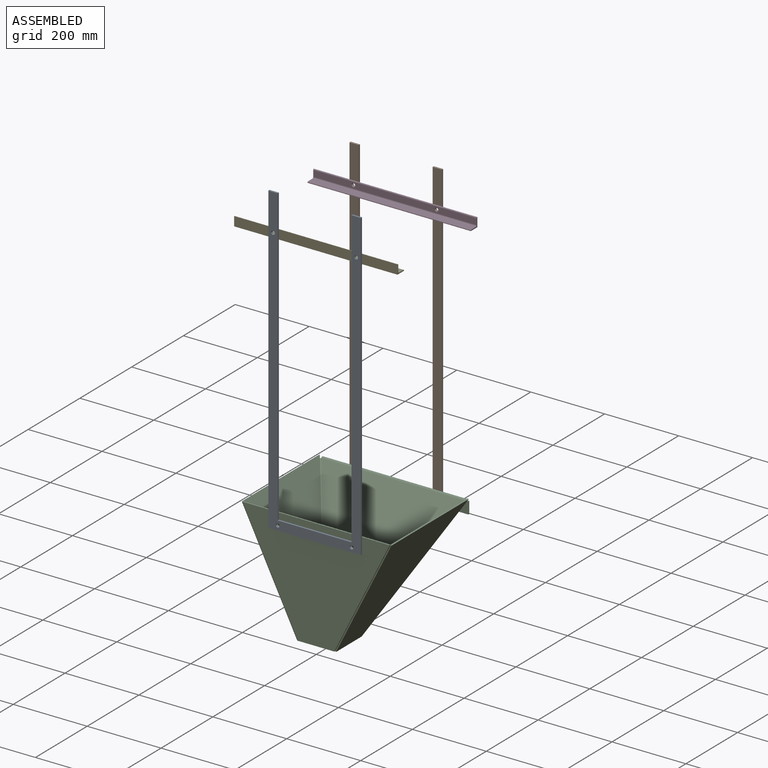
[diagram: assembled view]
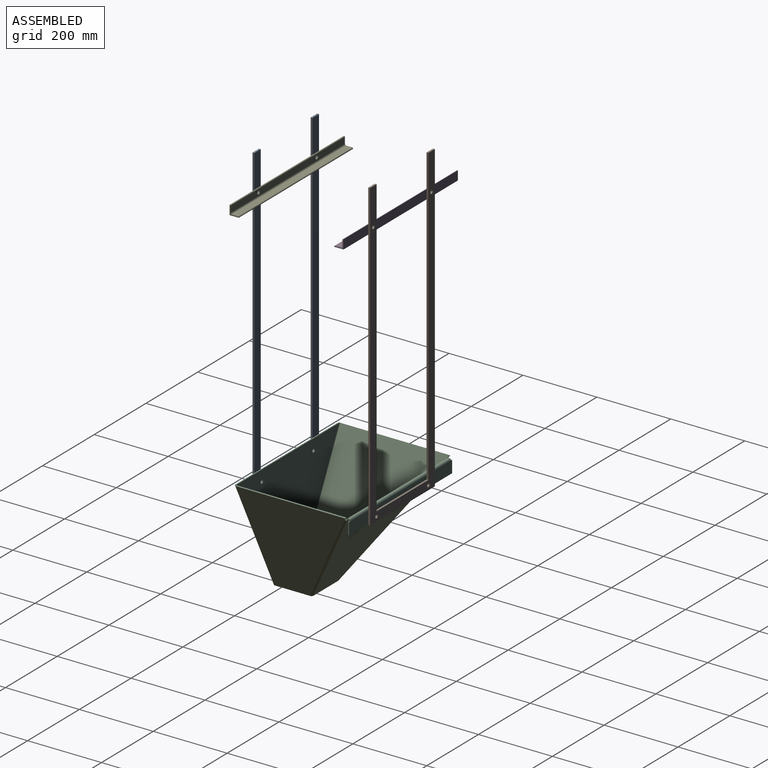
[diagram: assembled view, second angle]
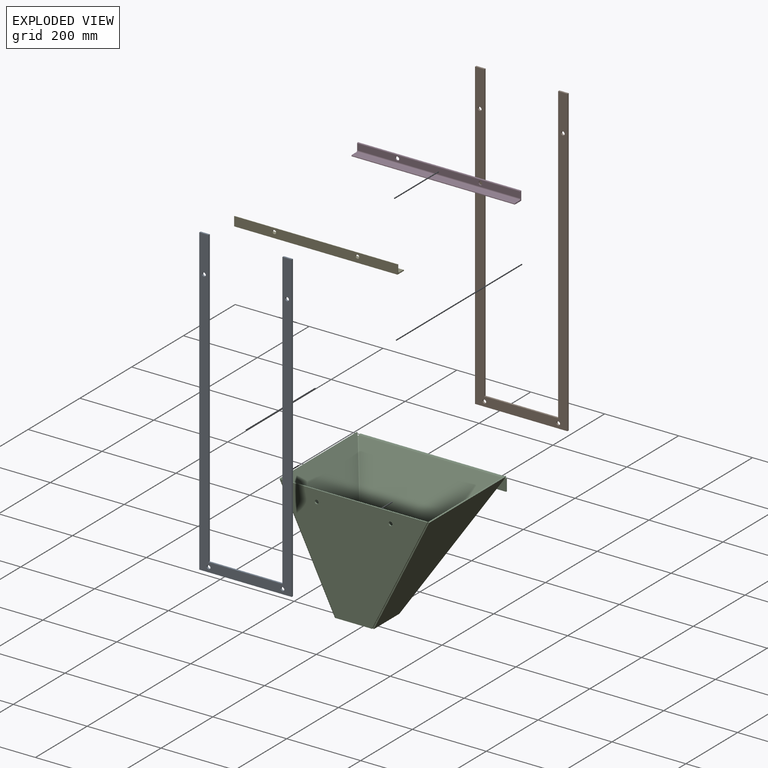
[diagram: exploded view]
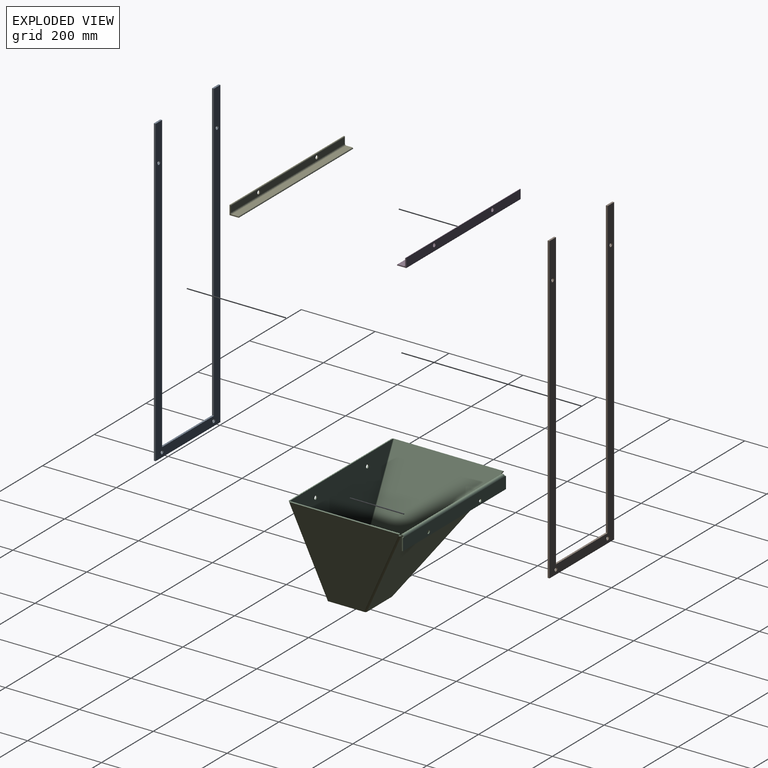
[diagram: exploded view, second angle]
ASSEMBLY  parts=5 mates=4
PART A: 14 faces, bbox 250x5x825 mm
  f0: plane 825x5mm, normal (1,0,0), area 4125mm2, adj f1,f10,f12,f13
  f1: plane 25x5mm, normal (0,0,1), area 125mm2, adj f0,f2,f12,f13
  f2: plane 800x5mm, normal (-1,0,0), area 4000mm2, adj f1,f3,f12,f13
  f3: plane 200x5mm, normal (0,0,1), area 1000mm2, adj f2,f4,f12,f13
  f4: plane 800x5mm, normal (1,0,0), area 4000mm2, adj f3,f5,f12,f13
  f5: plane 25x5mm, normal (0,0,1), area 125mm2, adj f4,f6,f12,f13
  f6: plane 825x5mm, normal (-1,0,0), area 4125mm2, adj f5,f10,f12,f13
  f7: cylinder r=5mm len=10mm, axis (0,1,0), area 157.1mm2, adj f12,f13
  f8: cylinder r=5mm len=10mm, axis (0,1,0), area 157.1mm2, adj f12,f13
  f9: cylinder r=5mm len=10mm, axis (0,1,0), area 157.1mm2, adj f12,f13
  f10: plane 250x5mm, normal (0,0,-1), area 1250mm2, adj f0,f6,f12,f13
  f11: cylinder r=5mm len=10mm, axis (0,1,0), area 157.1mm2, adj f12,f13
  f12: plane 825x250mm, normal (0,-1,0), area 45935.8mm2, adj f0,f1,f2,f3,f4,f5,f6,f7
  f13: plane 825x250mm, normal (0,1,0), area 45935.8mm2, adj f0,f1,f2,f3,f4,f5,f6,f7
PART B: same geometry as A
PART C: 46 faces, bbox 405.4x308.5x303.4 mm
  f0: plane 97.43x3mm, normal (0,0,-1), area 292.3mm2, adj f1,f5,f6,f43
  f1: plane 300x150mm, normal (-0.89,0,-0.45), area 1006.2mm2, adj f0,f2,f5,f6
  f2: plane 397.43x3mm, normal (0,0,1), area 1192.3mm2, adj f1,f5,f6,f42
  f3: cylinder r=5mm len=10mm, axis (0,-1,0), area 94.2mm2, adj f5,f6
  f4: cylinder r=5mm len=10mm, axis (0,-1,0), area 94.2mm2, adj f5,f6
  f5: plane 397.43x300mm, normal (0,1,0), area 74071.5mm2, adj f0,f1,f2,f3,f4,f44
  f6: plane 397.43x300mm, normal (0,-1,0), area 74071.5mm2, adj f0,f1,f2,f3,f4,f45
  f7: plane 97.9x2.68mm, normal (0.45,0,-0.89), area 293.7mm2, adj f10,f11,f12,f34
  f8: plane 7.42x5.72mm, normal (0.23,-0.86,-0.46), area 23.7mm2, adj f9,f11,f12,f35
  f9: plane 297.9x2.68mm, normal (-0.45,0,0.89), area 893.7mm2, adj f8,f10,f11,f12
  f10: plane 301.34x152.68mm, normal (0,1,0), area 1006.2mm2, adj f7,f9,f11,f12
  f11: plane 300x297.9mm, normal (-0.89,0,-0.45), area 66378.2mm2, adj f7,f8,f9,f10,f36
  f12: plane 300x297.9mm, normal (0.89,0,0.45), area 66378.2mm2, adj f7,f8,f9,f10,f37
  f13: plane 7.42x5.72mm, normal (-0.23,-0.86,-0.46), area 23.7mm2, adj f14,f16,f17,f38
  f14: plane 295.62x2.68mm, normal (0.45,0,0.89), area 886.9mm2, adj f13,f16,f17,f42
  f15: plane 95.62x2.68mm, normal (-0.45,0,-0.89), area 286.9mm2, adj f16,f17,f39,f43
  f16: plane 300x295.62mm, normal (0.89,0,-0.45), area 65613.4mm2, adj f13,f14,f15,f40,f44
  f17: plane 300x295.62mm, normal (-0.89,0,0.45), area 65613.4mm2, adj f13,f14,f15,f41,f45
  f18: plane 96.13x2.5mm, normal (0,0.55,-0.83), area 288.4mm2, adj f19,f20,f34,f39
  f19: plane 389.81x293.68mm, normal (0,-0.83,-0.55), area 85759.3mm2, adj f18,f33,f36,f40
  f20: plane 389.81x293.68mm, normal (0,0.83,0.55), area 85759.3mm2, adj f18,f32,f37,f41
  f21: plane 4.12x3mm, normal (0,0,1), area 12.4mm2, adj f27,f28,f29,f31
  f22: plane 398.06x3mm, normal (0,0,-1), area 1194.2mm2, adj f23,f27,f28,f29
  f23: plane 32.5x3mm, normal (-1,0,0), area 97.5mm2, adj f22,f24,f28,f29
  f24: plane 4.12x3mm, normal (0,0,1), area 12.4mm2, adj f23,f28,f29,f30
  f25: cylinder r=5mm len=10mm, axis (0,1,0), area 94.2mm2, adj f28,f29
  f26: cylinder r=5mm len=10mm, axis (0,1,0), area 94.2mm2, adj f28,f29
  f27: plane 32.5x3mm, normal (1,0,0), area 97.5mm2, adj f21,f22,f28,f29
  f28: plane 398.06x32.5mm, normal (0,1,0), area 12777.9mm2, adj f21,f22,f23,f24,f25,f26,f27,f33
  f29: plane 398.06x32.5mm, normal (0,-1,0), area 12777.9mm2, adj f21,f22,f23,f24,f25,f26,f27,f32
  f30: plane 9.71x5.3mm, normal (-1,0,0), area 29.1mm2, adj f24,f32,f33,f35
  f31: plane 9.71x5.3mm, normal (1,0,0), area 29.1mm2, adj f21,f32,f33,f38
  f32: cylinder r=5.3mm len=389.81mm, axis (-1,0,0), area 5275.7mm2, adj f20,f29,f30,f31
  f33: cylinder r=2.3mm len=389.81mm, axis (-1,0,0), area 2289.5mm2, adj f19,f28,f30,f31
  f34: bspline ~4.62x4.59mm, area 16.4mm2, adj f7,f18,f36,f37
  f35: plane 4.74x4.41mm, normal (-0.38,-0.51,0.77), area 15mm2, adj f8,f30,f36,f37
  f36: cylinder r=5.3mm len=294.95mm, axis (0.38,0.51,-0.77), area 2671.6mm2, adj f11,f19,f34,f35
  f37: cylinder r=2.3mm len=294.37mm, axis (0.38,0.51,-0.77), area 1159.4mm2, adj f12,f20,f34,f35
  f38: plane 4.74x4.41mm, normal (0.38,-0.51,0.77), area 15mm2, adj f13,f31,f40,f41
  f39: bspline ~4.62x4.58mm, area 16.4mm2, adj f15,f18,f40,f41
  f40: cylinder r=5.3mm len=294.95mm, axis (0.38,-0.51,0.77), area 2671.6mm2, adj f16,f19,f38,f39
  f41: cylinder r=2.3mm len=294.37mm, axis (0.38,-0.51,0.77), area 1159.4mm2, adj f17,f20,f38,f39
  f42: bspline ~5.3x5.25mm, area 18.4mm2, adj f2,f14,f44,f45
  f43: bspline ~5.3x5.28mm, area 18.6mm2, adj f0,f15,f44,f45
  f44: cylinder r=5.3mm len=303.4mm, axis (0.45,0,0.89), area 2789.4mm2, adj f5,f16,f42,f43
  f45: cylinder r=2.3mm len=302.06mm, axis (0.45,0,0.89), area 1210.5mm2, adj f6,f17,f42,f43
PART D: 13 faces, bbox 442x25x25 mm
  f0: plane 25x25mm, normal (-1,0,0), area 141.9mm2, adj f2,f3,f4,f5,f6,f7,f8,f9
  f1: plane 25x25mm, normal (1,0,0), area 141.9mm2, adj f2,f3,f4,f5,f6,f7,f8,f9
  f2: plane 442x1mm, normal (0,0,1), area 442mm2, adj f0,f1,f3,f10
  f3: cylinder r=2.02mm len=442mm, axis (1,0,0), area 1384.9mm2, adj f0,f1,f2,f4
  f4: plane 442x16.5mm, normal (0,-1,0), area 7135.9mm2, adj f0,f1,f3,f5,f11,f12
  f5: cylinder r=3.5mm len=442mm, axis (1,0,0), area 2430mm2, adj f0,f1,f4,f6
  f6: plane 442x16.5mm, normal (0,0,1), area 7293mm2, adj f0,f1,f5,f7
  f7: cylinder r=2.02mm len=442mm, axis (1,0,0), area 1384.9mm2, adj f0,f1,f6,f8
  f8: plane 442x1mm, normal (0,-1,0), area 442mm2, adj f0,f1,f7,f9
  f9: plane 442x25mm, normal (0,0,-1), area 11050mm2, adj f0,f1,f8,f10
  f10: plane 442x25mm, normal (0,1,0), area 10892.9mm2, adj f0,f1,f2,f9,f11,f12
  f11: cylinder r=5mm len=10mm, axis (0,-1,0), area 94.2mm2, adj f4,f10
  f12: cylinder r=5mm len=10mm, axis (0,-1,0), area 94.2mm2, adj f4,f10
PART E: 13 faces, bbox 442x25x25 mm
  f0: plane 25x25mm, normal (-1,0,0), area 141.9mm2, adj f2,f3,f4,f5,f6,f7,f8,f9
  f1: plane 25x25mm, normal (1,0,0), area 141.9mm2, adj f2,f3,f4,f5,f6,f7,f8,f9
  f2: cylinder r=2.02mm len=442mm, axis (1,0,0), area 1384.9mm2, adj f0,f1,f3,f10
  f3: plane 442x16.5mm, normal (0,0,1), area 7293mm2, adj f0,f1,f2,f4
  f4: cylinder r=3.5mm len=442mm, axis (1,0,0), area 2430mm2, adj f0,f1,f3,f5
  f5: plane 442x16.5mm, normal (0,1,0), area 7135.9mm2, adj f0,f1,f4,f6,f11,f12
  f6: cylinder r=2.02mm len=442mm, axis (1,0,0), area 1384.9mm2, adj f0,f1,f5,f7
  f7: plane 442x1mm, normal (0,0,1), area 442mm2, adj f0,f1,f6,f8
  f8: plane 442x25mm, normal (0,-1,0), area 10892.9mm2, adj f0,f1,f7,f9,f11,f12
  f9: plane 442x25mm, normal (0,0,-1), area 11050mm2, adj f0,f1,f8,f10
  f10: plane 442x1mm, normal (0,1,0), area 442mm2, adj f0,f1,f2,f9
  f11: cylinder r=5mm len=10mm, axis (0,-1,0), area 94.2mm2, adj f5,f8
  f12: cylinder r=5mm len=10mm, axis (0,-1,0), area 94.2mm2, adj f5,f8
PLACE A rot(axis=(-1,0,0),0deg) t=(-1.29,5.5,-30.12)mm
PLACE B rot(axis=(-1,0,0),0deg) t=(-1.29,318.99,-31.88)mm
PLACE C rot(axis=(0,0,1),180deg) t=(-1.29,303,-30.12)mm
PLACE D rot(axis=(-1,0,0),0deg) t=(-1.29,41.25,785.62)mm
PLACE E t=(-1.29,40.75,787.38)mm
MATE fastened E.f11 <-> A.f8  axis (0,-1,0) through (111.21,0,802.38)mm
MATE fastened B.f11 <-> C.f26  axis (0,-1,0) through (98.71,308.5,88.12)mm
MATE fastened D.f11 <-> B.f8  axis (0,1,0) through (111.21,308.5,800.62)mm
MATE fastened C.f3 <-> A.f11  axis (0,-1,0) through (98.71,0,89.88)mm
